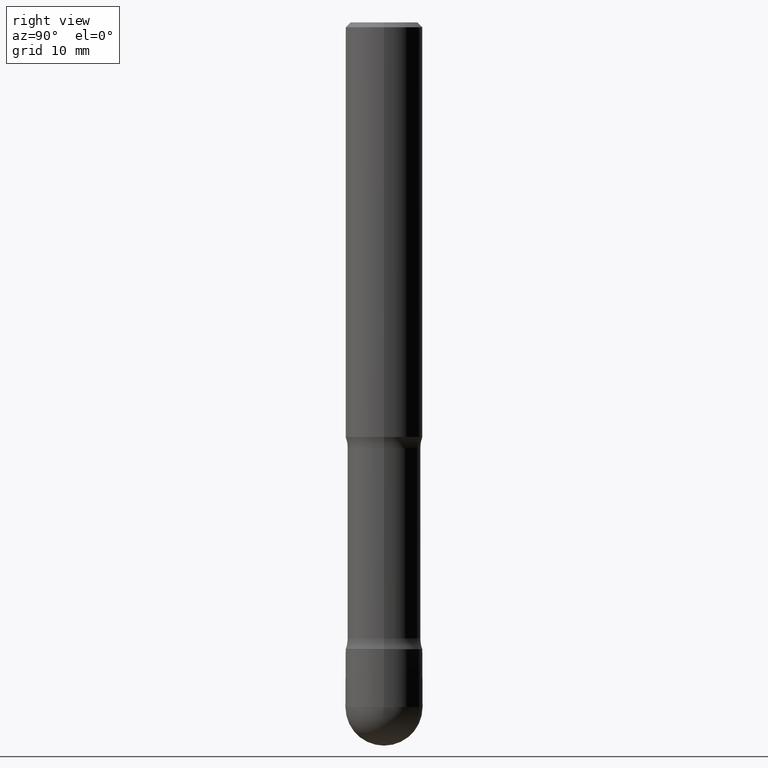
[diagram: clean part render]
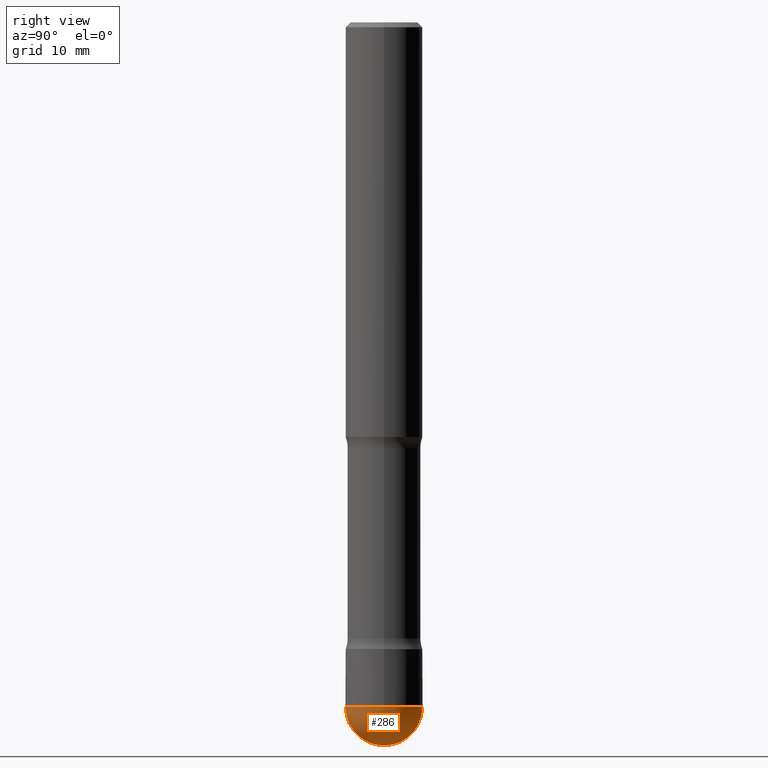
[diagram: same view with one face highlighted and labeled with its STEP entity id]
A machine part, right view. The second image highlights one B-rep face of the part: STEP entity #286.
In plain terms, the highlighted spherical surface has radius 4.0005 mm.
Its self-contained STEP definition (entity closure, byte-faithful):
#11 = DIRECTION ( 'NONE',  ( 1.000000000000000000, -7.105427357601001070E-15, 4.926315508542082329E-29 ) ) ;
#39 = EDGE_CURVE ( 'NONE', #237, #427, #554, .T. ) ;
#43 = DIRECTION ( 'NONE',  ( -1.000000000000000000, 6.982962677686265922E-15, -4.883557194083112340E-29 ) ) ;
#79 = CIRCLE ( 'NONE', #291, 0.1574999999999998623 ) ;
#82 = CARTESIAN_POINT ( 'NONE',  ( 0.1574999999999995015, -1.044721046208645143E-14, -2.795299999999999674 ) ) ;
#84 = CARTESIAN_POINT ( 'NONE',  ( 1.119104808822223473E-15, 0.1574999999999899258, -2.795300000000000118 ) ) ;
#113 = DIRECTION ( 'NONE',  ( -2.445468806185136597E-29, 3.491481338843145583E-15, 1.000000000000000000 ) ) ;
#127 = CARTESIAN_POINT ( 'NONE',  ( 6.822350084874735636E-29, -9.779025973554814517E-15, -2.795299999999999674 ) ) ;
#130 = ORIENTED_EDGE ( 'NONE', *, *, #39, .F. ) ;
#131 = CARTESIAN_POINT ( 'NONE',  ( 6.822350084874735636E-29, -9.779025973554814517E-15, -2.795299999999999674 ) ) ;
#151 = CIRCLE ( 'NONE', #379, 0.1574999999999998623 ) ;
#153 = VERTEX_POINT ( 'NONE', #84 ) ;
#180 = CARTESIAN_POINT ( 'NONE',  ( -1.099816621735516286E-15, -0.1575000000000094658, -2.795299999999998786 ) ) ;
#183 = EDGE_LOOP ( 'NONE', ( #319, #370, #281, #130 ) ) ;
#201 = EDGE_CURVE ( 'NONE', #356, #237, #151, .T. ) ;
#214 = DIRECTION ( 'NONE',  ( -6.982962677686264344E-15, -1.000000000000000000, 0.000000000000000000 ) ) ;
#230 = DIRECTION ( 'NONE',  ( -2.445468806185136597E-29, 3.491481338843145583E-15, 1.000000000000000000 ) ) ;
#237 = VERTEX_POINT ( 'NONE', #180 ) ;
#247 = CARTESIAN_POINT ( 'NONE',  ( 6.835818953929311707E-29, -9.759737786468243605E-15, -2.795299999999999674 ) ) ;
#281 = ORIENTED_EDGE ( 'NONE', *, *, #551, .F. ) ;
#284 = AXIS2_PLACEMENT_3D ( 'NONE', #127, #302, #351 ) ;
#286 = ADVANCED_FACE ( 'NONE', ( #396 ), #439, .T. ) ;
#290 = AXIS2_PLACEMENT_3D ( 'NONE', #247, #113, #372 ) ;
#291 = AXIS2_PLACEMENT_3D ( 'NONE', #490, #11, #354 ) ;
#302 = DIRECTION ( 'NONE',  ( 1.000000000000000000, -6.982962677686265133E-15, 4.883557194083112901E-29 ) ) ;
#315 = AXIS2_PLACEMENT_3D ( 'NONE', #541, #230, #348 ) ;
#319 = ORIENTED_EDGE ( 'NONE', *, *, #201, .F. ) ;
#348 = DIRECTION ( 'NONE',  ( 1.000000000000000000, -6.982962677686271444E-15, 0.000000000000000000 ) ) ;
#351 = DIRECTION ( 'NONE',  ( -6.982962677686265133E-15, -1.000000000000000000, 3.469013325287956449E-15 ) ) ;
#354 = DIRECTION ( 'NONE',  ( 7.105427357601000281E-15, 1.000000000000000000, 0.000000000000000000 ) ) ;
#356 = VERTEX_POINT ( 'NONE', #365 ) ;
#365 = CARTESIAN_POINT ( 'NONE',  ( 7.200776987321606637E-29, -1.033857837796589411E-14, -2.952799999999998981 ) ) ;
#370 = ORIENTED_EDGE ( 'NONE', *, *, #377, .T. ) ;
#372 = DIRECTION ( 'NONE',  ( 1.000000000000000000, -6.982962677686271444E-15, 0.000000000000000000 ) ) ;
#377 = EDGE_CURVE ( 'NONE', #356, #153, #79, .T. ) ;
#379 = AXIS2_PLACEMENT_3D ( 'NONE', #131, #43, #214 ) ;
#396 = FACE_OUTER_BOUND ( 'NONE', #183, .T. ) ;
#427 = VERTEX_POINT ( 'NONE', #82 ) ;
#439 = SPHERICAL_SURFACE ( 'NONE', #284, 0.1574999999999998623 ) ;
#490 = CARTESIAN_POINT ( 'NONE',  ( 6.822350084874735636E-29, -9.779025973554814517E-15, -2.795299999999999674 ) ) ;
#541 = CARTESIAN_POINT ( 'NONE',  ( 6.835818953929311707E-29, -9.759737786468243605E-15, -2.795299999999999674 ) ) ;
#551 = EDGE_CURVE ( 'NONE', #427, #153, #555, .T. ) ;
#554 = CIRCLE ( 'NONE', #290, 0.1574999999999995015 ) ;
#555 = CIRCLE ( 'NONE', #315, 0.1574999999999995015 ) ;